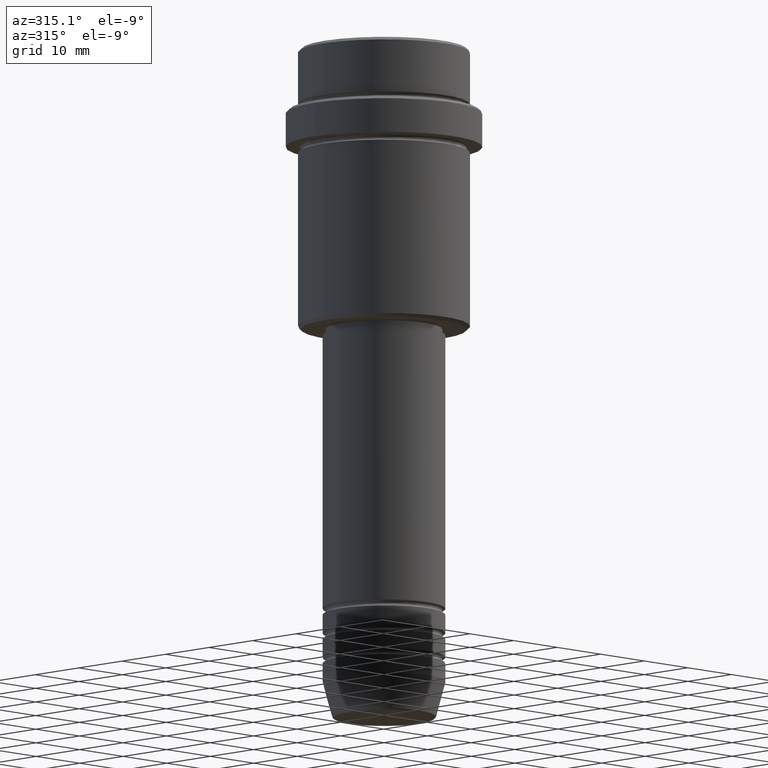
[diagram: clean part render]
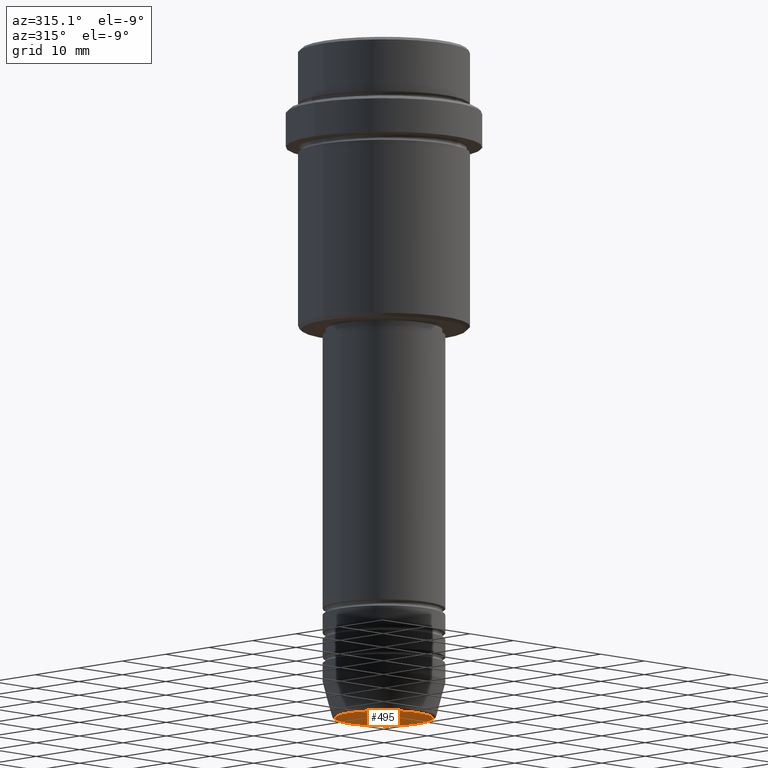
[diagram: same view with one face highlighted and labeled with its STEP entity id]
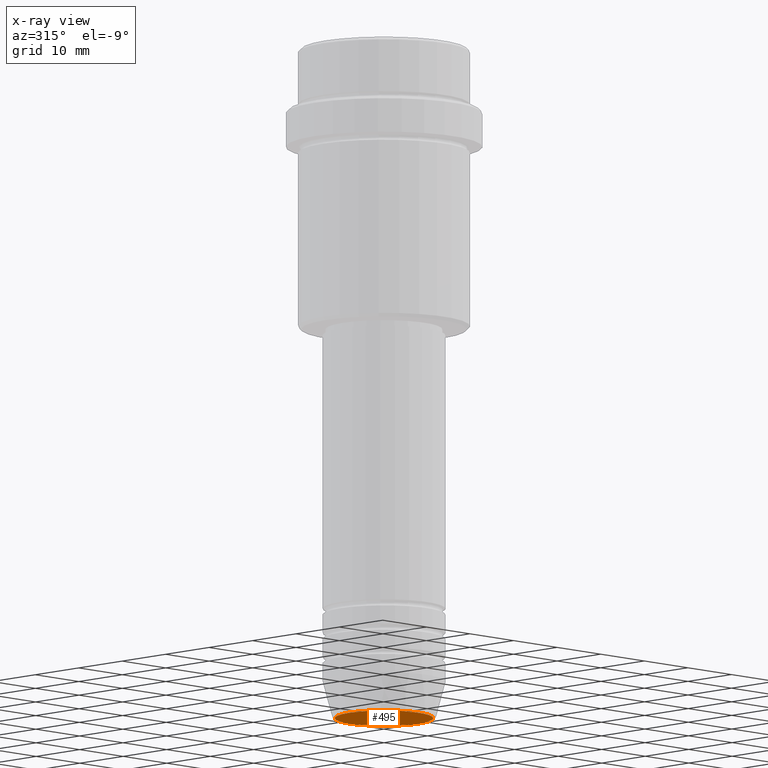
[diagram: x-ray of the same camera — body ghosted, the highlighted face saturated]
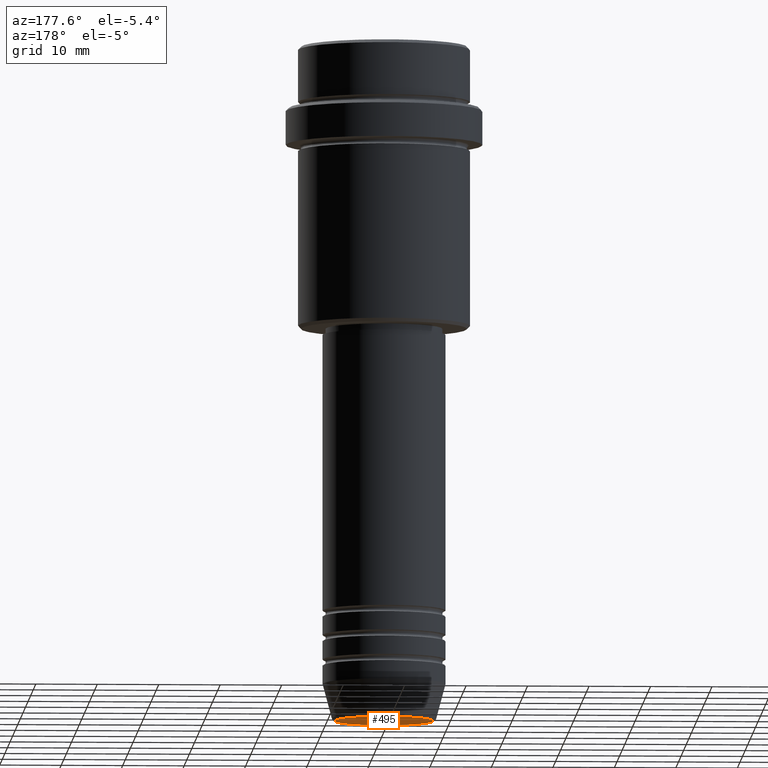
[diagram: same view with one face highlighted and labeled with its STEP entity id]
A machine part, auxiliary view. The second image highlights one B-rep face of the part: STEP entity #495.
The next image is the same camera in x-ray: the body ghosted, the highlighted face saturated — about 0% of this face is hidden behind the body in this view.
A second angle (auxiliary view) of the same face is appended — the face is thin or edge-on in the first view.
In plain terms, the highlighted planar face has unit normal (0, -0, 1).
Its self-contained STEP definition (entity closure, byte-faithful):
#54 = CARTESIAN_POINT ( 'NONE',  ( 0.000000000000000000, 0.000000000000000000, -110.0000000000000142 ) ) ;
#131 = VERTEX_POINT ( 'NONE', #702 ) ;
#182 = CIRCLE ( 'NONE', #758, 8.008641351423779753 ) ;
#316 = CARTESIAN_POINT ( 'NONE',  ( 0.000000000000000000, 0.000000000000000000, -110.0000000000000142 ) ) ;
#359 = EDGE_CURVE ( 'NONE', #681, #131, #182, .T. ) ;
#382 = EDGE_LOOP ( 'NONE', ( #619, #663 ) ) ;
#495 = ADVANCED_FACE ( 'NONE', ( #1325 ), #563, .F. ) ;
#512 = AXIS2_PLACEMENT_3D ( 'NONE', #680, #803, #910 ) ;
#563 = PLANE ( 'NONE',  #512 ) ;
#619 = ORIENTED_EDGE ( 'NONE', *, *, #359, .T. ) ;
#663 = ORIENTED_EDGE ( 'NONE', *, *, #1355, .T. ) ;
#680 = CARTESIAN_POINT ( 'NONE',  ( 0.000000000000000000, 0.000000000000000000, -110.0000000000000142 ) ) ;
#681 = VERTEX_POINT ( 'NONE', #1219 ) ;
#702 = CARTESIAN_POINT ( 'NONE',  ( -8.008641351423779753, 1.010348648938493172E-15, -110.0000000000000142 ) ) ;
#728 = DIRECTION ( 'NONE',  ( 0.000000000000000000, 0.000000000000000000, -1.000000000000000000 ) ) ;
#758 = AXIS2_PLACEMENT_3D ( 'NONE', #316, #1075, #770 ) ;
#770 = DIRECTION ( 'NONE',  ( 1.000000000000000000, 0.000000000000000000, 0.000000000000000000 ) ) ;
#803 = DIRECTION ( 'NONE',  ( 0.000000000000000000, -0.000000000000000000, 1.000000000000000000 ) ) ;
#910 = DIRECTION ( 'NONE',  ( 1.000000000000000000, 0.000000000000000000, 0.000000000000000000 ) ) ;
#1049 = DIRECTION ( 'NONE',  ( 1.000000000000000000, 0.000000000000000000, 0.000000000000000000 ) ) ;
#1075 = DIRECTION ( 'NONE',  ( 0.000000000000000000, 0.000000000000000000, -1.000000000000000000 ) ) ;
#1174 = AXIS2_PLACEMENT_3D ( 'NONE', #54, #728, #1049 ) ;
#1219 = CARTESIAN_POINT ( 'NONE',  ( 8.008641351423779753, 0.000000000000000000, -110.0000000000000142 ) ) ;
#1283 = CIRCLE ( 'NONE', #1174, 8.008641351423779753 ) ;
#1325 = FACE_OUTER_BOUND ( 'NONE', #382, .T. ) ;
#1355 = EDGE_CURVE ( 'NONE', #131, #681, #1283, .T. ) ;